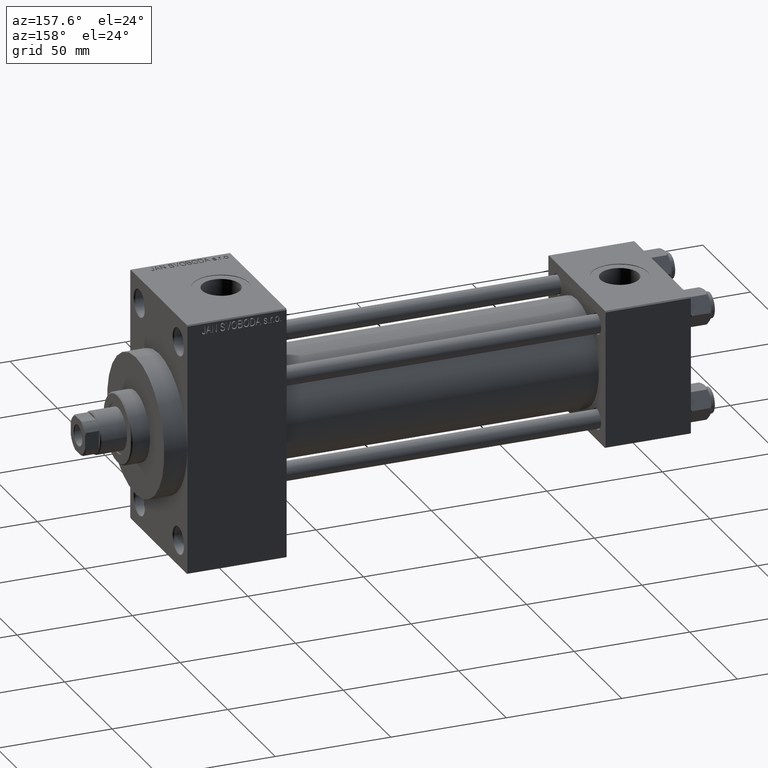
[diagram: clean part render]
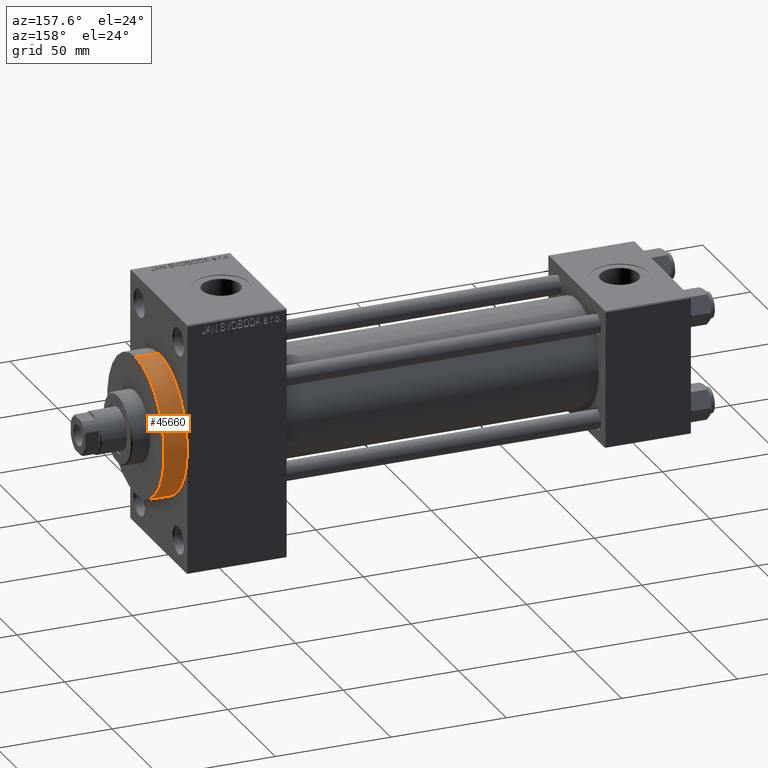
[diagram: same view with one face highlighted and labeled with its STEP entity id]
A machine part, auxiliary view. The second image highlights one B-rep face of the part: STEP entity #45660.
In plain terms, the highlighted cylindrical surface (partial cylindrical patch) has radius 30 mm, axis along (-1, -0, -0).
Its self-contained STEP definition (entity closure, byte-faithful):
#552 = CARTESIAN_POINT ( 'NONE',  ( 228.0000000000000284, 0.000000000000000000, 0.000000000000000000 ) ) ;
#4755 = ORIENTED_EDGE ( 'NONE', *, *, #26633, .T. ) ;
#6586 = VERTEX_POINT ( 'NONE', #22533 ) ;
#7699 = CARTESIAN_POINT ( 'NONE',  ( 218.0000000000000284, 0.000000000000000000, 0.000000000000000000 ) ) ;
#10049 = DIRECTION ( 'NONE',  ( -1.000000000000000000, -0.000000000000000000, -0.000000000000000000 ) ) ;
#11193 = AXIS2_PLACEMENT_3D ( 'NONE', #7699, #45109, #36847 ) ;
#11566 = DIRECTION ( 'NONE',  ( 0.000000000000000000, 0.000000000000000000, 1.000000000000000000 ) ) ;
#12023 = CYLINDRICAL_SURFACE ( 'NONE', #15289, 30.00000000000000000 ) ;
#12863 = LINE ( 'NONE', #15982, #32759 ) ;
#13257 = DIRECTION ( 'NONE',  ( 1.000000000000000000, 0.000000000000000000, 0.000000000000000000 ) ) ;
#13390 = DIRECTION ( 'NONE',  ( 1.000000000000000000, 0.000000000000000000, 0.000000000000000000 ) ) ;
#14314 = CARTESIAN_POINT ( 'NONE',  ( 228.0000000000000284, 0.000000000000000000, 30.00000000000000000 ) ) ;
#15289 = AXIS2_PLACEMENT_3D ( 'NONE', #552, #26590, #11566 ) ;
#15391 = EDGE_CURVE ( 'NONE', #32756, #6586, #12863, .T. ) ;
#15982 = CARTESIAN_POINT ( 'NONE',  ( 228.0000000000000284, 3.673940397442059178E-15, -30.00000000000000000 ) ) ;
#15987 = AXIS2_PLACEMENT_3D ( 'NONE', #20884, #13257, #34499 ) ;
#16978 = DIRECTION ( 'NONE',  ( 0.000000000000000000, 0.000000000000000000, -1.000000000000000000 ) ) ;
#16985 = VERTEX_POINT ( 'NONE', #24205 ) ;
#17439 = CARTESIAN_POINT ( 'NONE',  ( 218.0000000000000284, 0.000000000000000000, 0.000000000000000000 ) ) ;
#19101 = EDGE_CURVE ( 'NONE', #32756, #19808, #36563, .T. ) ;
#19808 = VERTEX_POINT ( 'NONE', #14314 ) ;
#19916 = ORIENTED_EDGE ( 'NONE', *, *, #30592, .F. ) ;
#20039 = CARTESIAN_POINT ( 'NONE',  ( 228.0000000000000284, 3.673940397442059178E-15, -30.00000000000000000 ) ) ;
#20884 = CARTESIAN_POINT ( 'NONE',  ( 228.0000000000000284, 0.000000000000000000, 0.000000000000000000 ) ) ;
#22533 = CARTESIAN_POINT ( 'NONE',  ( 218.0000000000000284, 3.673940397442059178E-15, -30.00000000000000000 ) ) ;
#23608 = EDGE_LOOP ( 'NONE', ( #24367, #41542, #30738, #4755, #19916 ) ) ;
#24205 = CARTESIAN_POINT ( 'NONE',  ( 218.0000000000000284, 30.00000000000000000, 0.000000000000000000 ) ) ;
#24367 = ORIENTED_EDGE ( 'NONE', *, *, #19101, .F. ) ;
#26135 = AXIS2_PLACEMENT_3D ( 'NONE', #17439, #13390, #16978 ) ;
#26590 = DIRECTION ( 'NONE',  ( -1.000000000000000000, -0.000000000000000000, -0.000000000000000000 ) ) ;
#26633 = EDGE_CURVE ( 'NONE', #16985, #31402, #40615, .T. ) ;
#30592 = EDGE_CURVE ( 'NONE', #19808, #31402, #39179, .T. ) ;
#30738 = ORIENTED_EDGE ( 'NONE', *, *, #39672, .T. ) ;
#31402 = VERTEX_POINT ( 'NONE', #32061 ) ;
#32061 = CARTESIAN_POINT ( 'NONE',  ( 218.0000000000000284, 0.000000000000000000, 30.00000000000000000 ) ) ;
#32756 = VERTEX_POINT ( 'NONE', #20039 ) ;
#32759 = VECTOR ( 'NONE', #37939, 1000.000000000000000 ) ;
#34499 = DIRECTION ( 'NONE',  ( 0.000000000000000000, 0.000000000000000000, -1.000000000000000000 ) ) ;
#36563 = CIRCLE ( 'NONE', #15987, 30.00000000000000000 ) ;
#36847 = DIRECTION ( 'NONE',  ( 0.000000000000000000, 0.000000000000000000, -1.000000000000000000 ) ) ;
#37939 = DIRECTION ( 'NONE',  ( -1.000000000000000000, -0.000000000000000000, -0.000000000000000000 ) ) ;
#39179 = LINE ( 'NONE', #47267, #43774 ) ;
#39672 = EDGE_CURVE ( 'NONE', #6586, #16985, #42470, .T. ) ;
#40615 = CIRCLE ( 'NONE', #26135, 30.00000000000000000 ) ;
#40690 = FACE_OUTER_BOUND ( 'NONE', #23608, .T. ) ;
#41542 = ORIENTED_EDGE ( 'NONE', *, *, #15391, .T. ) ;
#42470 = CIRCLE ( 'NONE', #11193, 30.00000000000000000 ) ;
#43774 = VECTOR ( 'NONE', #10049, 1000.000000000000000 ) ;
#45109 = DIRECTION ( 'NONE',  ( 1.000000000000000000, 0.000000000000000000, 0.000000000000000000 ) ) ;
#45660 = ADVANCED_FACE ( 'NONE', ( #40690 ), #12023, .T. ) ;
#47267 = CARTESIAN_POINT ( 'NONE',  ( 228.0000000000000284, 0.000000000000000000, 30.00000000000000000 ) ) ;